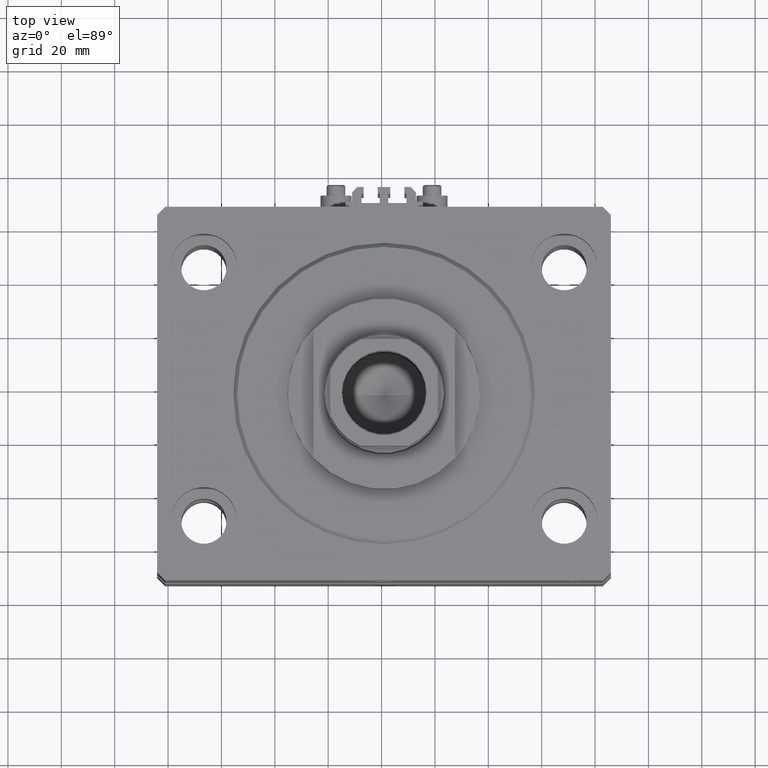
[diagram: clean part render]
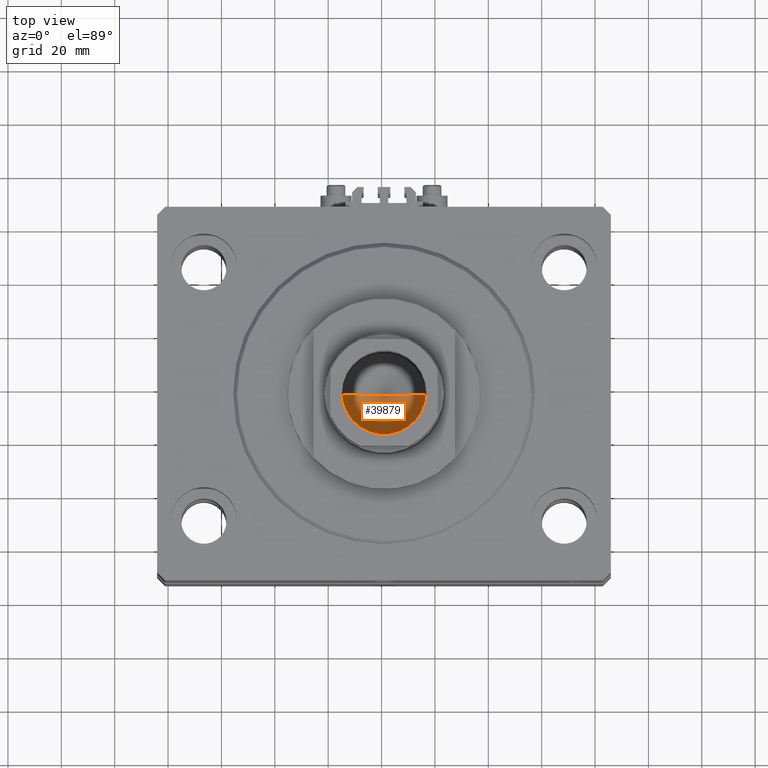
[diagram: same view with one face highlighted and labeled with its STEP entity id]
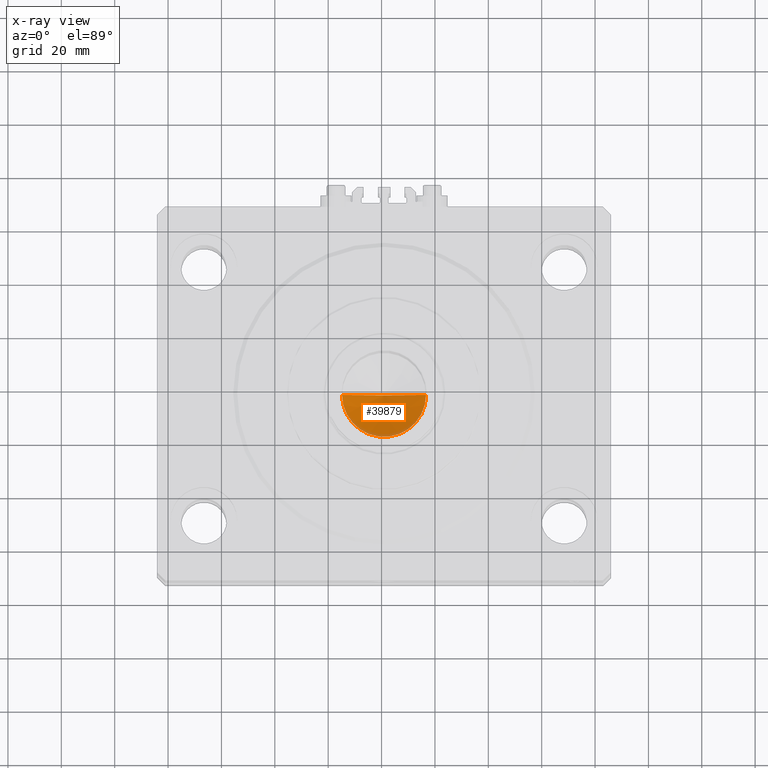
[diagram: x-ray of the same camera — body ghosted, the highlighted face saturated]
A machine part, top view. The second image highlights one B-rep face of the part: STEP entity #39879.
The next image is the same camera in x-ray: the body ghosted, the highlighted face saturated — about 8% of this face is hidden behind the body in this view.
In plain terms, the highlighted conical surface has half-angle 59 deg.
Its self-contained STEP definition (entity closure, byte-faithful):
#715 = CARTESIAN_POINT ( 'NONE',  ( -15.74999999999998934, 1.928818708657080161E-15, 71.10000000000002274 ) ) ;
#2824 = DIRECTION ( 'NONE',  ( 1.000000000000000000, 0.000000000000000000, 0.000000000000000000 ) ) ;
#3067 = DIRECTION ( 'NONE',  ( -0.000000000000000000, -0.000000000000000000, 1.000000000000000000 ) ) ;
#3229 = CONICAL_SURFACE ( 'NONE', #8006, 15.74999999999998934, 1.029744258676653645 ) ;
#5635 = CARTESIAN_POINT ( 'NONE',  ( 15.74999999999998934, 0.000000000000000000, 71.10000000000002274 ) ) ;
#7674 = DIRECTION ( 'NONE',  ( -0.000000000000000000, -0.000000000000000000, 1.000000000000000000 ) ) ;
#7675 = VERTEX_POINT ( 'NONE', #715 ) ;
#8006 = AXIS2_PLACEMENT_3D ( 'NONE', #10507, #3067, #2824 ) ;
#10507 = CARTESIAN_POINT ( 'NONE',  ( 0.000000000000000000, 0.000000000000000000, 71.10000000000002274 ) ) ;
#13253 = CARTESIAN_POINT ( 'NONE',  ( -1.480675244360640996E-14, 0.000000000000000000, 61.63644525031594412 ) ) ;
#14301 = ORIENTED_EDGE ( 'NONE', *, *, #21782, .T. ) ;
#19063 = ORIENTED_EDGE ( 'NONE', *, *, #26467, .F. ) ;
#21190 = VERTEX_POINT ( 'NONE', #5635 ) ;
#21782 = EDGE_CURVE ( 'NONE', #7675, #21190, #40889, .T. ) ;
#23371 = VERTEX_POINT ( 'NONE', #13253 ) ;
#24427 = CARTESIAN_POINT ( 'NONE',  ( 15.74999999999998934, 0.000000000000000000, 71.10000000000002274 ) ) ;
#25479 = CARTESIAN_POINT ( 'NONE',  ( 0.000000000000000000, 0.000000000000000000, 71.10000000000002274 ) ) ;
#26320 = FACE_OUTER_BOUND ( 'NONE', #44421, .T. ) ;
#26467 = EDGE_CURVE ( 'NONE', #23371, #21190, #43231, .T. ) ;
#27474 = DIRECTION ( 'NONE',  ( -0.8571673007021118895, 1.049727191138618079E-16, 0.5150380749100549327 ) ) ;
#27715 = LINE ( 'NONE', #30714, #46558 ) ;
#30714 = CARTESIAN_POINT ( 'NONE',  ( -15.74999999999998934, 1.928818708657080161E-15, 71.10000000000002274 ) ) ;
#32367 = ORIENTED_EDGE ( 'NONE', *, *, #32578, .T. ) ;
#32578 = EDGE_CURVE ( 'NONE', #23371, #7675, #27715, .T. ) ;
#39879 = ADVANCED_FACE ( 'NONE', ( #26320 ), #3229, .F. ) ;
#40889 = CIRCLE ( 'NONE', #43254, 15.74999999999998934 ) ;
#41725 = VECTOR ( 'NONE', #43473, 1000.000000000000000 ) ;
#43231 = LINE ( 'NONE', #24427, #41725 ) ;
#43254 = AXIS2_PLACEMENT_3D ( 'NONE', #25479, #7674, #48976 ) ;
#43473 = DIRECTION ( 'NONE',  ( 0.8571673007021118895, 0.000000000000000000, 0.5150380749100549327 ) ) ;
#44421 = EDGE_LOOP ( 'NONE', ( #19063, #32367, #14301 ) ) ;
#46558 = VECTOR ( 'NONE', #27474, 1000.000000000000000 ) ;
#48976 = DIRECTION ( 'NONE',  ( 1.000000000000000000, 0.000000000000000000, 0.000000000000000000 ) ) ;